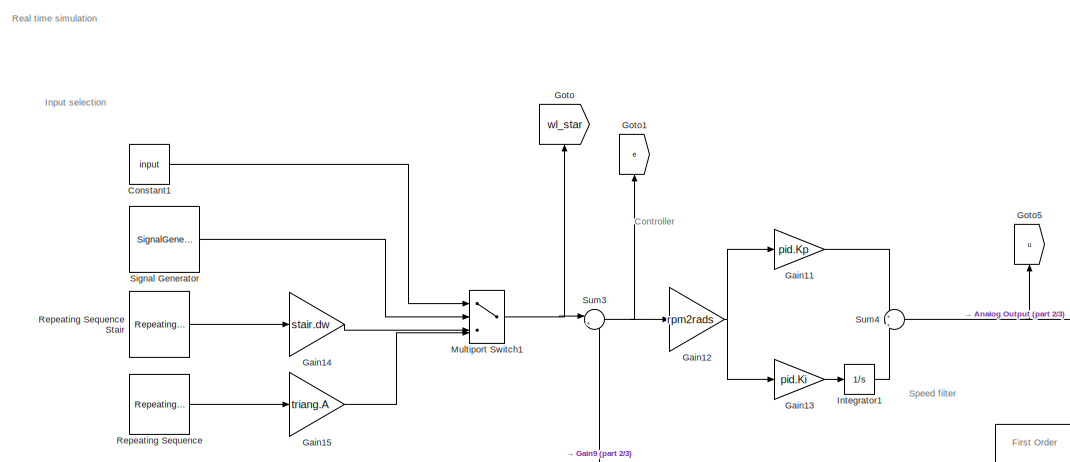
[diagram: root canvas - part 1/3, top left region]
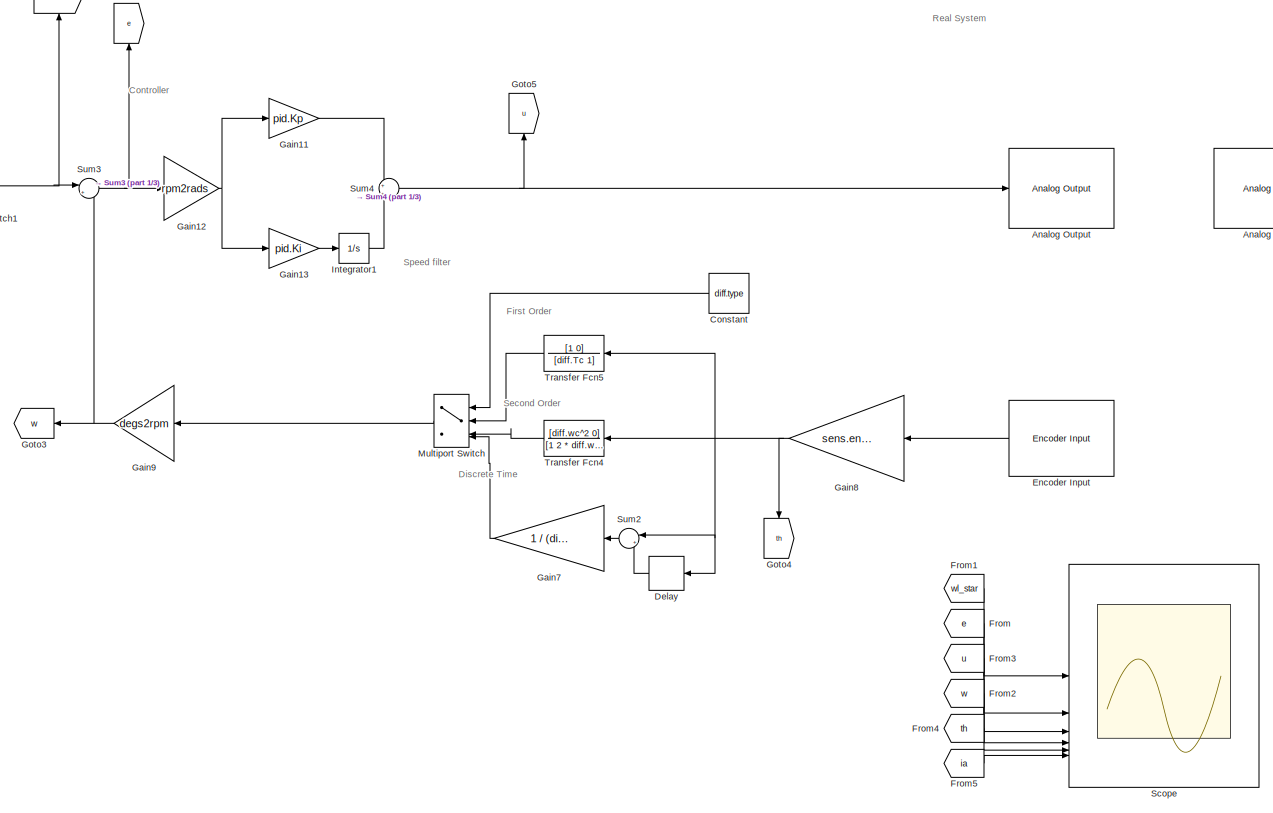
[diagram: root canvas - part 2/3, center side, full height]
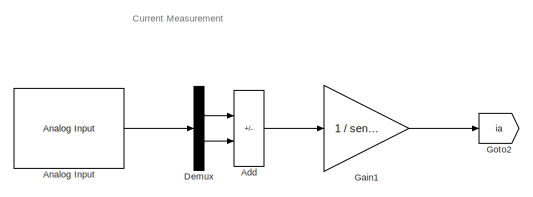
[diagram: root canvas - part 3/3, top right region]
MODEL slx_d9e3b4a05680
KIND model
CONFIG AbsTol = auto
CONFIG EnableMultiTasking = off
CONFIG FixedStep = 0.001
CONFIG MaxStep = 0.0001
CONFIG MinStep = auto
CONFIG RelTol = 1e-3
CONFIG SampleTimeConstraint = Unconstrained
CONFIG SolverName = ode3
CONFIG StartTime = 0.0
CONFIG StopTime = 20
BLOCK [Sum] Add
  IconShape = rectangular
  Inputs = +-
BLOCK [Reference] Analog Input  REF=sldrtlib/Analog Input
  AttributesFormatString = National Instruments\nPCIe-6321 [auto]
  SourceBlock = sldrtlib/Analog Input
  SourceType = Simulink Desktop Real-Time Analog Input
BLOCK [Reference] Analog Output  REF=sldrtlib/Analog Output
  AttributesFormatString = National Instruments\nPCIe-6321 [auto]
  SourceBlock = sldrtlib/Analog Output
  SourceType = Simulink Desktop Real-Time Analog Output
BLOCK [Constant] Constant
  Value = diff.type
BLOCK [Constant] Constant1
  Value = input
BLOCK [Delay] Delay
  DelayLength = diff.N
  InputPortMap = u0
BLOCK [Demux] Demux
  Outputs = 2
BLOCK [Reference] Encoder Input  REF=sldrtlib/Encoder Input
  AttributesFormatString = National Instruments\nPCIe-6321 [auto]
  SourceBlock = sldrtlib/Encoder Input
  SourceType = Simulink Desktop Real-Time Encoder Input
BLOCK [From] From
  GotoTag = e
BLOCK [From] From1
  GotoTag = wl_star
BLOCK [From] From2
  GotoTag = w
BLOCK [From] From3
  GotoTag = u
BLOCK [From] From4
  GotoTag = th
BLOCK [From] From5
  GotoTag = ia
BLOCK [Gain] Gain1
  Gain = 1 / sens.curr.Rs
BLOCK [Gain] Gain11
  Gain = pid.Kp
BLOCK [Gain] Gain12
  Gain = rpm2rads
BLOCK [Gain] Gain13
  Gain = pid.Ki
BLOCK [Gain] Gain14
  Gain = stair.dw
BLOCK [Gain] Gain15
  Gain = triang.A
BLOCK [Gain] Gain7
  Gain = 1 / (diff.Ts * diff.N)
BLOCK [Gain] Gain8
  Gain = sens.enc.pulse2deg
BLOCK [Gain] Gain9
  Gain = degs2rpm
BLOCK [Goto] Goto
  GotoTag = wl_star
  NameLocation = right
BLOCK [Goto] Goto1
  GotoTag = e
  NameLocation = right
BLOCK [Goto] Goto2
  GotoTag = ia
BLOCK [Goto] Goto3
  GotoTag = w
BLOCK [Goto] Goto4
  GotoTag = th
  NameLocation = left
BLOCK [Goto] Goto5
  GotoTag = u
  NameLocation = right
BLOCK [Integrator] Integrator1
BLOCK [MultiPortSwitch] Multiport Switch
  InputSameDT = off
  SaturateOnIntegerOverflow = off
BLOCK [MultiPortSwitch] Multiport Switch1
  InputSameDT = off
  SaturateOnIntegerOverflow = off
BLOCK [Reference] Repeating Sequence  REF=simulink/Sources/Repeating
Sequence
  SourceBlock = simulink/Sources/Repeating\nSequence
  SourceType = Repeating table
BLOCK [Reference] Repeating Sequence Stair  REF=simulink/Sources/Repeating
Sequence
Stair
  SourceBlock = simulink/Sources/Repeating\nSequence\nStair
  SourceType = Repeating Sequence Stair
BLOCK [Scope] Scope
  Floating = off
  NumInputPorts = 6
  ScopeSpecificationString = Simulink.scopes.TimeScopeBlockCfg('CurrentConfiguration', extmgr.ConfigurationSet(extmgr.Configuration('Core','General UI',true),extmgr.Configuration('Core','Source UI',true),extmgr.Configuration('Sources','WiredSimulink',true,'DataLogging',true,'DataLoggingVariableName','triang_resp','DataLoggingSaveFormat','StructureWithTime'),extmgr.Configuration('Visuals','Time Domain',true,'SerializedDisplays...<+4947ch>
BLOCK [SignalGenerator] Signal Generator
  Amplitude = step.A
  Frequency = 1 / step.T
  WaveForm = square
BLOCK [Sum] Sum2
  Inputs = |+-
BLOCK [Sum] Sum3
  Inputs = |+-
BLOCK [Sum] Sum4
  Inputs = +|+
BLOCK [TransferFcn] Transfer Fcn4
  Denominator = [1 2 * diff.wc * diff.d diff.wc^2]
  Numerator = [diff.wc^2 0]
BLOCK [TransferFcn] Transfer Fcn5
  Denominator = [diff.Tc 1]
  Numerator = [1 0]
ANNOTATION (root): Controller
ANNOTATION (root): Current Measurement
ANNOTATION (root): Discrete Time
ANNOTATION (root): First Order
ANNOTATION (root): Input selection
ANNOTATION (root): Real System
ANNOTATION (root): Real time simulation
ANNOTATION (root): Second Order
ANNOTATION (root): Speed filter
LINE Add:1 -> Gain1:1
LINE Analog Input:1 -> Demux:1
LINE Constant1:1 -> Multiport Switch1:1
LINE Constant:1 -> Multiport Switch:1
LINE Delay:1 -> Sum2:2
LINE Demux:1 -> Add:1
LINE Demux:2 -> Add:2
LINE Encoder Input:1 -> Gain8:1
LINE From1:1 -> Scope:1
LINE From2:1 -> Scope:4
LINE From3:1 -> Scope:3
LINE From4:1 -> Scope:5
LINE From5:1 -> Scope:6
LINE From:1 -> Scope:2
LINE Gain11:1 -> Sum4:1
NET Gain12:1 -> Gain11:1, Gain13:1
LINE Gain13:1 -> Integrator1:1
LINE Gain14:1 -> Multiport Switch1:3
LINE Gain15:1 -> Multiport Switch1:4
LINE Gain1:1 -> Goto2:1
LINE Gain7:1 -> Multiport Switch:4
NET Gain8:1 -> Delay:1, Goto4:1, Sum2:1, Transfer Fcn4:1, Transfer Fcn5:1
NET Gain9:1 -> Goto3:1, Sum3:2
LINE Integrator1:1 -> Sum4:2
NET Multiport Switch1:1 -> Goto:1, Sum3:1
LINE Multiport Switch:1 -> Gain9:1
LINE Repeating Sequence Stair:1 -> Gain14:1
LINE Repeating Sequence:1 -> Gain15:1
LINE Signal Generator:1 -> Multiport Switch1:2
LINE Sum2:1 -> Gain7:1
NET Sum3:1 -> Gain12:1, Goto1:1
NET Sum4:1 -> Analog Output:1, Goto5:1
LINE Transfer Fcn4:1 -> Multiport Switch:3
LINE Transfer Fcn5:1 -> Multiport Switch:2
note: NET lines group one-source signal fan-out (src -> all destinations, sorted); 1:1 wires keep LINE
